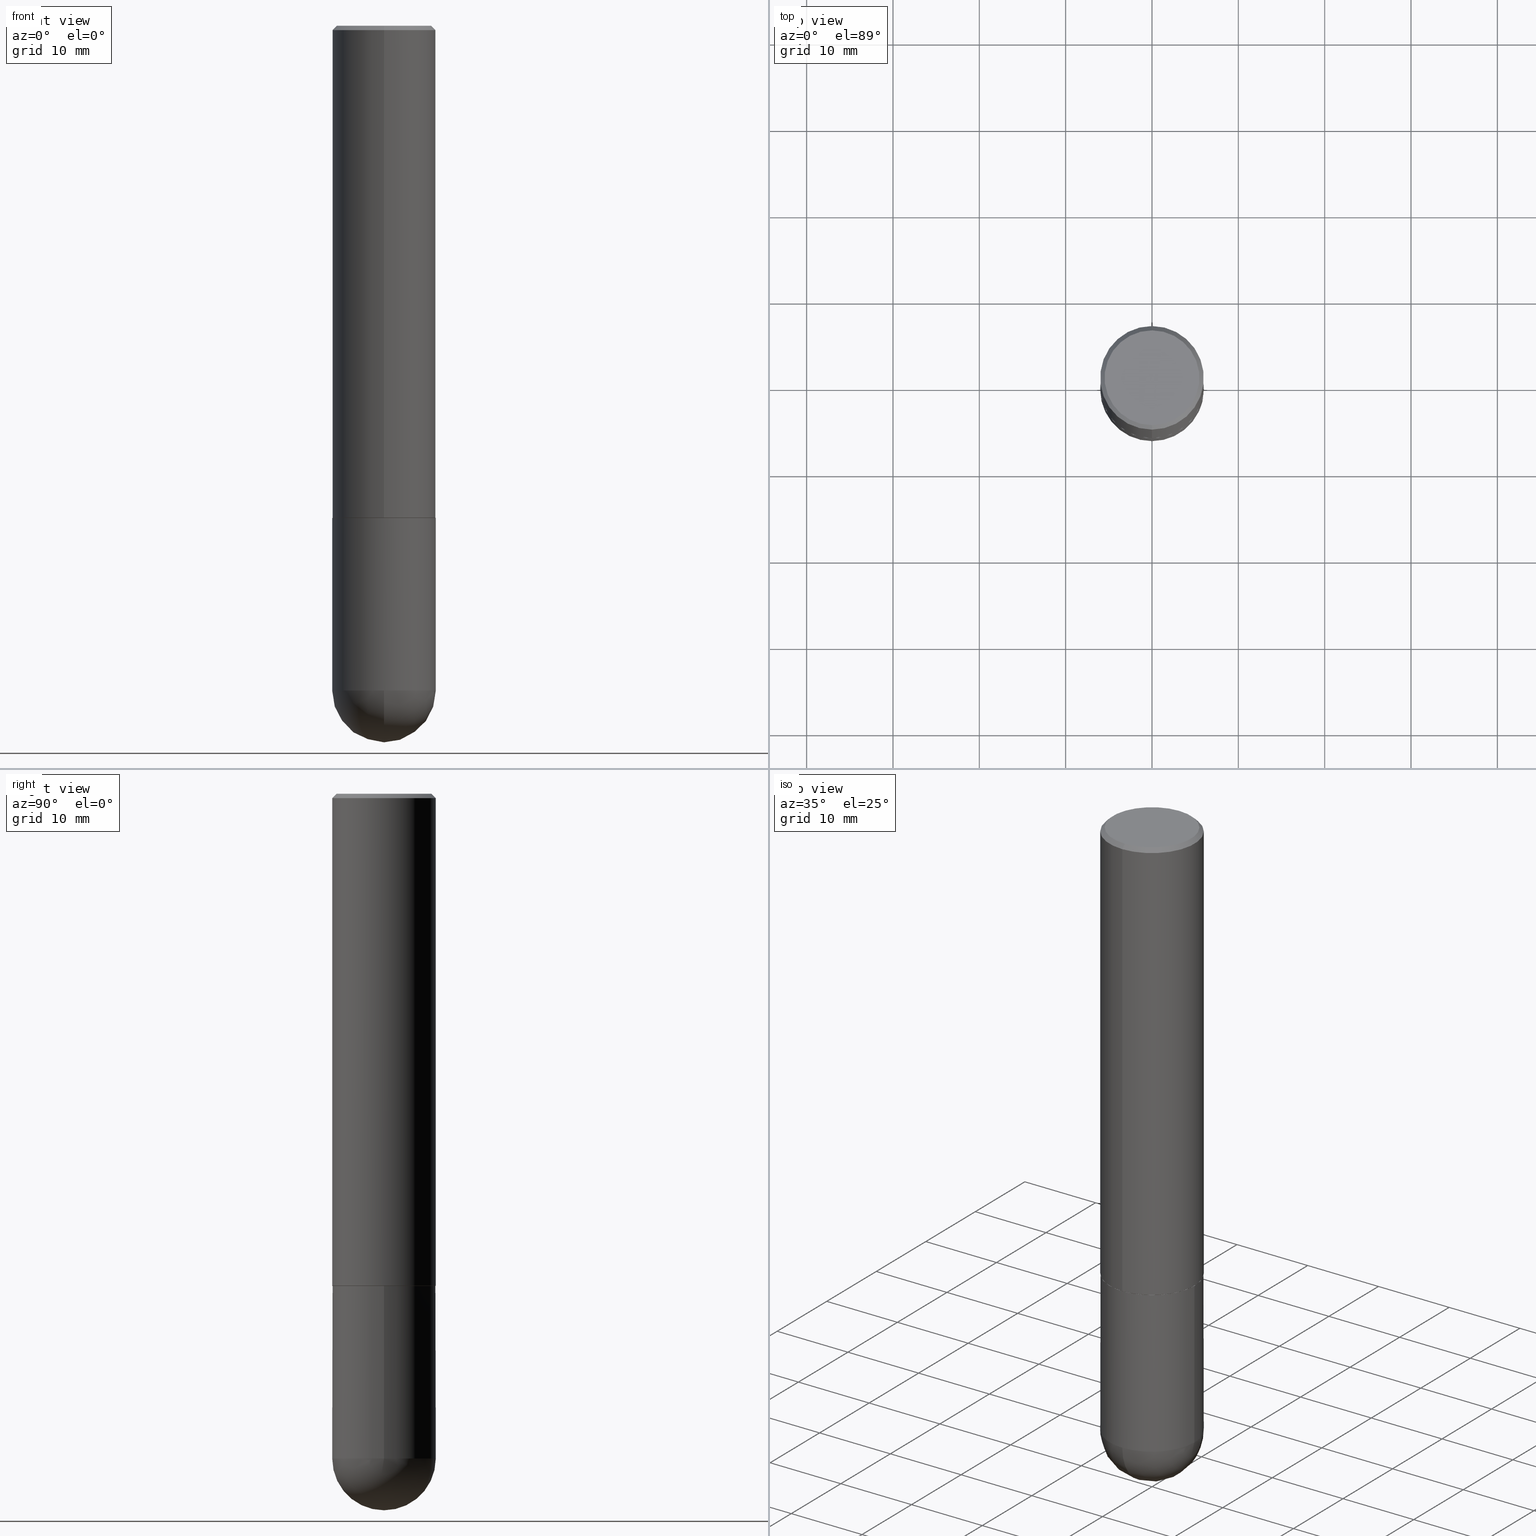
[diagram: canonical four-view strip — front | top / right | iso, engineering-drawing reading convention]
A machine part, canonical four-view strip (front | top / right | iso — engineering-drawing reading convention). The complete STEP part file that produces these views, byte-faithful:
ISO-10303-21;
HEADER;
FILE_DESCRIPTION (( 'STEP AP203' ),
    '1' );
FILE_NAME ('46346.STEP',
    '2024-04-10T11:49:39',
    ( '' ),
    ( '' ),
    'SwSTEP 2.0',
    'SolidWorks 2023',
    '' );
FILE_SCHEMA (( 'CONFIG_CONTROL_DESIGN' ));
ENDSEC;

DATA;
#1 = DIRECTION ( 'NONE',  ( -2.444322153688896365E-29, 3.493123410481168498E-15, 1.000000000000000000 ) ) ;
#2 = CC_DESIGN_DATE_AND_TIME_ASSIGNMENT ( #303, #170, ( #5 ) ) ;
#3 = COORDINATED_UNIVERSAL_TIME_OFFSET ( 5, 0, .BEHIND. ) ;
#4 = AXIS2_PLACEMENT_3D ( 'NONE', #76, #237, #143 ) ;
#5 = SECURITY_CLASSIFICATION ( '', '', #198 ) ;
#6 = DIRECTION ( 'NONE',  ( -6.982962677686265922E-15, -1.000000000000000000, 3.487819265831412533E-15 ) ) ;
#7 = PERSON_AND_ORGANIZATION ( #240, #160 ) ;
#8 = CARTESIAN_POINT ( 'NONE',  ( -0.2361999999999999933, -7.531527533735092287E-15, -2.244100000000000428 ) ) ;
#9 = CALENDAR_DATE ( 2024, 10, 4 ) ;
#10 = PLANE ( 'NONE',  #275 ) ;
#11 = CALENDAR_DATE ( 2024, 10, 4 ) ;
#12 = DIRECTION ( 'NONE',  ( -2.444322153688896365E-29, 3.493123410481168498E-15, 1.000000000000000000 ) ) ;
#13 = CIRCLE ( 'NONE', #193, 0.2362000000000002709 ) ;
#14 = EDGE_CURVE ( 'NONE', #279, #103, #372, .T. ) ;
#15 = SHAPE_DEFINITION_REPRESENTATION ( #346, #201 ) ;
#16 = DIRECTION ( 'NONE',  ( -2.445468806185136597E-29, 3.491481338843145583E-15, 1.000000000000000000 ) ) ;
#17 = CARTESIAN_POINT ( 'NONE',  ( 7.082318908036356584E-29, -1.105860804684304690E-14, -3.031500000000000306 ) ) ;
#18 = DIRECTION ( 'NONE',  ( 1.000000000000000000, -6.982962677686265133E-15, 0.000000000000000000 ) ) ;
#19 = VECTOR ( 'NONE', #194, 39.37007874015748143 ) ;
#20 = VERTEX_POINT ( 'NONE', #51 ) ;
#21 = EDGE_LOOP ( 'NONE', ( #212, #399, #115, #100 ) ) ;
#22 = VERTEX_POINT ( 'NONE', #30 ) ;
#23 = CIRCLE ( 'NONE', #330, 0.2351999999999999924 ) ;
#24 = EDGE_CURVE ( 'NONE', #20, #54, #254, .T. ) ;
#25 = ORIENTED_EDGE ( 'NONE', *, *, #80, .T. ) ;
#26 = ADVANCED_FACE ( 'NONE', ( #157 ), #93, .T. ) ;
#27 = CC_DESIGN_APPROVAL ( #343, ( #268 ) ) ;
#28 = DIRECTION ( 'NONE',  ( -2.445468806185136597E-29, 3.491481338843145583E-15, 1.000000000000000000 ) ) ;
#29 = EDGE_LOOP ( 'NONE', ( #376, #342 ) ) ;
#30 = CARTESIAN_POINT ( 'NONE',  ( -1.649375784469443080E-15, -0.2362000000000080979, -2.243099999999999206 ) ) ;
#31 = CARTESIAN_POINT ( 'NONE',  ( 0.2361999999999999933, -1.085920526006994836E-14, -3.031499999999999417 ) ) ;
#32 = AXIS2_PLACEMENT_3D ( 'NONE', #162, #12, #203 ) ;
#33 = CARTESIAN_POINT ( 'NONE',  ( 7.082318908036356584E-29, -1.105860804684304690E-14, -3.031500000000000306 ) ) ;
#34 = CC_DESIGN_PERSON_AND_ORGANIZATION_ASSIGNMENT ( #38, #77, ( #268 ) ) ;
#35 = CARTESIAN_POINT ( 'NONE',  ( -4.077789392714510406E-45, 5.827473096868962417E-31, 1.668270030020566327E-16 ) ) ;
#36 = FACE_OUTER_BOUND ( 'NONE', #289, .T. ) ;
#37 = ADVANCED_FACE ( 'NONE', ( #410 ), #267, .T. ) ;
#38 = PERSON_AND_ORGANIZATION ( #240, #160 ) ;
#39 = VECTOR ( 'NONE', #228, 39.37007874015748143 ) ;
#40 =( GEOMETRIC_REPRESENTATION_CONTEXT ( 3 ) GLOBAL_UNCERTAINTY_ASSIGNED_CONTEXT ( ( #187 ) ) GLOBAL_UNIT_ASSIGNED_CONTEXT ( ( #305, #144, #299 ) ) REPRESENTATION_CONTEXT ( 'NONE', 'WORKASPACE' ) );
#41 = CARTESIAN_POINT ( 'NONE',  ( 5.482859022939564646E-29, -7.835425122050310720E-15, -2.243100000000000094 ) ) ;
#42 = PERSON_AND_ORGANIZATION_ROLE ( 'creator' ) ;
#43 = CARTESIAN_POINT ( 'NONE',  ( -0.2361999999999999933, 1.678301941865356591E-15, -1.161852468318208757E-29 ) ) ;
#44 = PERSON_AND_ORGANIZATION_ROLE ( 'design_supplier' ) ;
#45 = FACE_OUTER_BOUND ( 'NONE', #29, .T. ) ;
#46 = AXIS2_PLACEMENT_3D ( 'NONE', #89, #337, #364 ) ;
#47 = DIRECTION ( 'NONE',  ( -2.444322153688896365E-29, 3.493123410481168498E-15, 1.000000000000000000 ) ) ;
#48 = APPROVAL_PERSON_ORGANIZATION ( #324, #374, #269 ) ;
#49 = PERSON_AND_ORGANIZATION ( #240, #160 ) ;
#50 = ORIENTED_EDGE ( 'NONE', *, *, #386, .F. ) ;
#51 = CARTESIAN_POINT ( 'NONE',  ( -1.678301941865284805E-15, -0.2362000000000109567, -3.031499999999998529 ) ) ;
#52 = FACE_OUTER_BOUND ( 'NONE', #338, .T. ) ;
#53 = AXIS2_PLACEMENT_3D ( 'NONE', #118, #335, #365 ) ;
#54 = VERTEX_POINT ( 'NONE', #31 ) ;
#55 = DIRECTION ( 'NONE',  ( -6.982962677686265133E-15, -1.000000000000000000, 3.484499991918703113E-15 ) ) ;
#56 = ORIENTED_EDGE ( 'NONE', *, *, #69, .F. ) ;
#57 = APPLICATION_CONTEXT ( 'configuration controlled 3d designs of mechanical parts and assemblies' ) ;
#58 = ORIENTED_EDGE ( 'NONE', *, *, #98, .F. ) ;
#59 = VECTOR ( 'NONE', #241, 39.37007874015748143 ) ;
#60 = LOCAL_TIME ( 7, 49, 39.00000000000000000, #206 ) ;
#61 = ORIENTED_EDGE ( 'NONE', *, *, #68, .T. ) ;
#62 = CARTESIAN_POINT ( 'NONE',  ( 4.888644307377804992E-31, -6.986246820962353956E-17, -0.02000000000000005246 ) ) ;
#63 = VERTEX_POINT ( 'NONE', #128 ) ;
#64 = EDGE_CURVE ( 'NONE', #54, #274, #391, .T. ) ;
#65 = CARTESIAN_POINT ( 'NONE',  ( 1.671196514507810212E-15, 0.2351999999999921376, -2.244100000000000872 ) ) ;
#66 = ORIENTED_EDGE ( 'NONE', *, *, #176, .F. ) ;
#67 = SPHERICAL_SURFACE ( 'NONE', #4, 0.2362000000000002709 ) ;
#68 = EDGE_CURVE ( 'NONE', #103, #279, #224, .T. ) ;
#69 = EDGE_CURVE ( 'NONE', #146, #20, #164, .T. ) ;
#70 = DIRECTION ( 'NONE',  ( 0.000000000000000000, 0.000000000000000000, 1.000000000000000000 ) ) ;
#71 = EDGE_CURVE ( 'NONE', #313, #215, #258, .T. ) ;
#72 = CC_DESIGN_PERSON_AND_ORGANIZATION_ASSIGNMENT ( #136, #166, ( #387 ) ) ;
#73 = FACE_OUTER_BOUND ( 'NONE', #117, .T. ) ;
#74 = MECHANICAL_CONTEXT ( 'NONE', #57, 'mechanical' ) ;
#75 = CONICAL_SURFACE ( 'NONE', #121, 0.2351999999999999924, 0.7853981633976873100 ) ;
#76 = CARTESIAN_POINT ( 'NONE',  ( 7.082318908036356584E-29, -1.105860804684304690E-14, -3.031500000000000306 ) ) ;
#77 = PERSON_AND_ORGANIZATION_ROLE ( 'creator' ) ;
#78 = CYLINDRICAL_SURFACE ( 'NONE', #32, 0.2362000000000001043 ) ;
#79 = CALENDAR_DATE ( 2024, 10, 4 ) ;
#80 = EDGE_CURVE ( 'NONE', #184, #215, #102, .T. ) ;
#81 = CARTESIAN_POINT ( 'NONE',  ( 1.649375784469550759E-15, 0.2361999999999921662, -2.244100000000000872 ) ) ;
#82 = CC_DESIGN_PERSON_AND_ORGANIZATION_ASSIGNMENT ( #49, #42, ( #344 ) ) ;
#83 = DIRECTION ( 'NONE',  ( 1.000000000000000000, 0.000000000000000000, 0.000000000000000000 ) ) ;
#84 = AXIS2_PLACEMENT_3D ( 'NONE', #255, #375, #319 ) ;
#85 = DIRECTION ( 'NONE',  ( -6.982962677686265922E-15, -1.000000000000000000, 3.469747663417773058E-15 ) ) ;
#86 = ORIENTED_EDGE ( 'NONE', *, *, #378, .T. ) ;
#87 = CARTESIAN_POINT ( 'NONE',  ( 5.482859022939564646E-29, -7.835425122050310720E-15, -2.243100000000000094 ) ) ;
#88 = ORIENTED_EDGE ( 'NONE', *, *, #14, .T. ) ;
#89 = CARTESIAN_POINT ( 'NONE',  ( 7.413438685950241710E-29, -1.058442567870299344E-14, -3.031499999999999417 ) ) ;
#90 = EDGE_LOOP ( 'NONE', ( #311, #220 ) ) ;
#91 = EDGE_CURVE ( 'NONE', #125, #184, #347, .T. ) ;
#92 = DIRECTION ( 'NONE',  ( -2.444322153688896365E-29, 3.493123410481168498E-15, 1.000000000000000000 ) ) ;
#93 = CONICAL_SURFACE ( 'NONE', #84, 0.2351999999999999924, 0.7853981633976873100 ) ;
#94 = AXIS2_PLACEMENT_3D ( 'NONE', #288, #1, #6 ) ;
#95 = ORIENTED_EDGE ( 'NONE', *, *, #14, .F. ) ;
#96 = ORIENTED_EDGE ( 'NONE', *, *, #323, .T. ) ;
#97 = CARTESIAN_POINT ( 'NONE',  ( 1.649375784469495934E-15, 0.2361999999999998545, -0.02000000000000087472 ) ) ;
#98 = EDGE_CURVE ( 'NONE', #313, #407, #322, .T. ) ;
#99 = AXIS2_PLACEMENT_3D ( 'NONE', #81, #270, #390 ) ;
#100 = ORIENTED_EDGE ( 'NONE', *, *, #378, .F. ) ;
#101 = CARTESIAN_POINT ( 'NONE',  ( 7.413438685950241710E-29, -1.058442567870299344E-14, -3.031499999999999417 ) ) ;
#102 = LINE ( 'NONE', #405, #360 ) ;
#103 = VERTEX_POINT ( 'NONE', #8 ) ;
#104 = CIRCLE ( 'NONE', #317, 0.2361999999999999378 ) ;
#105 = CC_DESIGN_APPROVAL ( #374, ( #344 ) ) ;
#106 = LINE ( 'NONE', #356, #39 ) ;
#107 = CYLINDRICAL_SURFACE ( 'NONE', #302, 0.2361999999999999933 ) ;
#108 = DIRECTION ( 'NONE',  ( -2.444322153688896365E-29, 3.493123410481168498E-15, 1.000000000000000000 ) ) ;
#109 = APPROVAL_DATE_TIME ( #393, #374 ) ;
#110 = AXIS2_PLACEMENT_3D ( 'NONE', #137, #264, #205 ) ;
#111 = CARTESIAN_POINT ( 'NONE',  ( 0.000000000000000000, 0.000000000000000000, 0.000000000000000000 ) ) ;
#112 = PERSON_AND_ORGANIZATION_ROLE ( 'classification_officer' ) ;
#113 = DIRECTION ( 'NONE',  ( 6.982962677686265922E-15, 1.000000000000000000, -3.493123410481168498E-15 ) ) ;
#114 = DIRECTION ( 'NONE',  ( -2.444322153688896365E-29, 3.493123410481168498E-15, 1.000000000000000000 ) ) ;
#115 = ORIENTED_EDGE ( 'NONE', *, *, #408, .T. ) ;
#116 = LINE ( 'NONE', #359, #59 ) ;
#117 = EDGE_LOOP ( 'NONE', ( #401, #312, #188, #309 ) ) ;
#118 = CARTESIAN_POINT ( 'NONE',  ( 4.888644307377804992E-31, -6.986246820962353956E-17, -0.02000000000000005246 ) ) ;
#119 = DIRECTION ( 'NONE',  ( -6.982962677686265922E-15, -1.000000000000000000, 3.487819265831412533E-15 ) ) ;
#120 = EDGE_LOOP ( 'NONE', ( #50, #403, #186, #333 ) ) ;
#121 = AXIS2_PLACEMENT_3D ( 'NONE', #219, #147, #397 ) ;
#122 = ORIENTED_EDGE ( 'NONE', *, *, #293, .T. ) ;
#123 = DIRECTION ( 'NONE',  ( -2.444322153688896365E-29, 3.493123410481168498E-15, 1.000000000000000000 ) ) ;
#124 = EDGE_CURVE ( 'NONE', #125, #63, #189, .T. ) ;
#125 = VERTEX_POINT ( 'NONE', #235 ) ;
#126 = EDGE_CURVE ( 'NONE', #146, #274, #182, .T. ) ;
#127 = AXIS2_PLACEMENT_3D ( 'NONE', #216, #272, #149 ) ;
#128 = CARTESIAN_POINT ( 'NONE',  ( -1.642392821791754699E-15, -0.2352000000000078472, -2.244099999999999095 ) ) ;
#129 = ORIENTED_EDGE ( 'NONE', *, *, #323, .F. ) ;
#130 = DIRECTION ( 'NONE',  ( -1.000000000000000000, 7.105427357601001070E-15, -4.926315508542082329E-29 ) ) ;
#131 = DIRECTION ( 'NONE',  ( -6.982962677686265922E-15, -1.000000000000000000, 3.493123410481168103E-15 ) ) ;
#132 = CC_DESIGN_PERSON_AND_ORGANIZATION_ASSIGNMENT ( #328, #112, ( #5 ) ) ;
#133 = VECTOR ( 'NONE', #379, 39.37007874015748143 ) ;
#134 = APPROVAL_DATE_TIME ( #357, #148 ) ;
#135 = DIRECTION ( 'NONE',  ( -2.444322153688896365E-29, 3.493123410481168498E-15, 1.000000000000000000 ) ) ;
#136 = PERSON_AND_ORGANIZATION ( #240, #160 ) ;
#137 = CARTESIAN_POINT ( 'NONE',  ( 7.082318908036356584E-29, -1.105860804684304690E-14, -3.031500000000000306 ) ) ;
#138 = APPROVAL_STATUS ( 'not_yet_approved' ) ;
#139 = CYLINDRICAL_SURFACE ( 'NONE', #159, 0.2362000000000001043 ) ;
#140 = ADVANCED_FACE ( 'NONE', ( #260 ), #266, .F. ) ;
#141 = APPROVAL_STATUS ( 'not_yet_approved' ) ;
#142 = CIRCLE ( 'NONE', #127, 0.2161999999999997535 ) ;
#143 = DIRECTION ( 'NONE',  ( 6.982962677686265922E-15, 1.000000000000000000, -4.626330217890364603E-15 ) ) ;
#144 =( NAMED_UNIT ( * ) PLANE_ANGLE_UNIT ( ) SI_UNIT ( $, .RADIAN. ) );
#145 = DIRECTION ( 'NONE',  ( -2.445468806185136597E-29, 3.491481338843145583E-15, 1.000000000000000000 ) ) ;
#146 = VERTEX_POINT ( 'NONE', #327 ) ;
#147 = DIRECTION ( 'NONE',  ( -2.444322153688896365E-29, 3.493123410481168498E-15, 1.000000000000000000 ) ) ;
#148 = APPROVAL ( #349, 'UNSPECIFIED' ) ;
#149 = DIRECTION ( 'NONE',  ( -6.982962677686266711E-15, -1.000000000000000000, 3.493123410481168892E-15 ) ) ;
#150 = EDGE_LOOP ( 'NONE', ( #66, #58, #315, #282 ) ) ;
#151 = CARTESIAN_POINT ( 'NONE',  ( -0.2361999999999999933, -7.531527533735093865E-15, -3.031499999999999417 ) ) ;
#152 = ORIENTED_EDGE ( 'NONE', *, *, #408, .F. ) ;
#153 = ORIENTED_EDGE ( 'NONE', *, *, #196, .F. ) ;
#154 = AXIS2_PLACEMENT_3D ( 'NONE', #17, #362, #175 ) ;
#155 = EDGE_LOOP ( 'NONE', ( #239, #25, #259, #153 ) ) ;
#156 = ORIENTED_EDGE ( 'NONE', *, *, #307, .F. ) ;
#157 = FACE_OUTER_BOUND ( 'NONE', #21, .T. ) ;
#158 = CC_DESIGN_DATE_AND_TIME_ASSIGNMENT ( #355, #177, ( #344 ) ) ;
#159 = AXIS2_PLACEMENT_3D ( 'NONE', #111, #207, #131 ) ;
#160 = ORGANIZATION ( 'UNSPECIFIED', 'UNSPECIFIED', '' ) ;
#161 = ORIENTED_EDGE ( 'NONE', *, *, #223, .F. ) ;
#162 = CARTESIAN_POINT ( 'NONE',  ( 0.000000000000000000, 0.000000000000000000, 0.000000000000000000 ) ) ;
#163 = PLANE ( 'NONE',  #99 ) ;
#164 = CIRCLE ( 'NONE', #398, 0.2362000000000002709 ) ;
#165 = APPROVAL_PERSON_ORGANIZATION ( #326, #343, #229 ) ;
#166 = PERSON_AND_ORGANIZATION_ROLE ( 'design_owner' ) ;
#167 = CARTESIAN_POINT ( 'NONE',  ( 1.649375784469495934E-15, 0.2361999999999998545, -0.02000000000000087472 ) ) ;
#168 = ADVANCED_FACE ( 'NONE', ( #298 ), #107, .T. ) ;
#169 = DIRECTION ( 'NONE',  ( -2.445468806185136877E-29, 3.491481338843145188E-15, 1.000000000000000000 ) ) ;
#170 = DATE_TIME_ROLE ( 'classification_date' ) ;
#171 = FACE_OUTER_BOUND ( 'NONE', #250, .T. ) ;
#172 = AXIS2_PLACEMENT_3D ( 'NONE', #101, #28, #345 ) ;
#173 = AXIS2_PLACEMENT_3D ( 'NONE', #197, #135, #300 ) ;
#174 = COORDINATED_UNIVERSAL_TIME_OFFSET ( 5, 0, .BEHIND. ) ;
#175 = DIRECTION ( 'NONE',  ( 6.982962677686265922E-15, 1.000000000000000000, -4.626330217890364603E-15 ) ) ;
#176 = EDGE_CURVE ( 'NONE', #407, #256, #106, .T. ) ;
#177 = DATE_TIME_ROLE ( 'creation_date' ) ;
#178 = LENGTH_MEASURE_WITH_UNIT ( LENGTH_MEASURE( 0.02539999999999999897 ), #211 );
#179 = PRODUCT_RELATED_PRODUCT_CATEGORY ( 'detail', '', ( #387 ) ) ;
#180 = CARTESIAN_POINT ( 'NONE',  ( 1.579546157692632438E-15, 0.2161999999999997535, -5.883862783439711833E-16 ) ) ;
#181 = AXIS2_PLACEMENT_3D ( 'NONE', #204, #221, #406 ) ;
#182 = CIRCLE ( 'NONE', #110, 0.2362000000000002709 ) ;
#183 = CARTESIAN_POINT ( 'NONE',  ( 4.888644307377804992E-31, -6.986246820962353956E-17, -0.02000000000000005246 ) ) ;
#184 = VERTEX_POINT ( 'NONE', #199 ) ;
#185 = FACE_OUTER_BOUND ( 'NONE', #366, .T. ) ;
#186 = ORIENTED_EDGE ( 'NONE', *, *, #277, .T. ) ;
#187 = UNCERTAINTY_MEASURE_WITH_UNIT (LENGTH_MEASURE( 1.000000000000000082E-05 ), #305, 'distance_accuracy_value', 'NONE');
#188 = ORIENTED_EDGE ( 'NONE', *, *, #301, .F. ) ;
#189 = CIRCLE ( 'NONE', #173, 0.2351999999999999924 ) ;
#190 = ORIENTED_EDGE ( 'NONE', *, *, #126, .T. ) ;
#191 = CC_DESIGN_PERSON_AND_ORGANIZATION_ASSIGNMENT ( #7, #44, ( #268 ) ) ;
#192 = ORIENTED_EDGE ( 'NONE', *, *, #68, .F. ) ;
#193 = AXIS2_PLACEMENT_3D ( 'NONE', #41, #108, #296 ) ;
#194 = DIRECTION ( 'NONE',  ( 5.024295867789263036E-15, 0.7071067811867189912, 0.7071067811863760433 ) ) ;
#195 = ORIENTED_EDGE ( 'NONE', *, *, #24, .T. ) ;
#196 = EDGE_CURVE ( 'NONE', #22, #256, #230, .T. ) ;
#197 = CARTESIAN_POINT ( 'NONE',  ( 5.485303345093252884E-29, -7.838918245460790521E-15, -2.244099999999999984 ) ) ;
#198 = SECURITY_CLASSIFICATION_LEVEL ( 'unclassified' ) ;
#199 = CARTESIAN_POINT ( 'NONE',  ( 1.678301941865385582E-15, 0.2361999999999924438, -2.243100000000000982 ) ) ;
#200 = VECTOR ( 'NONE', #350, 39.37007874015748143 ) ;
#201 = ADVANCED_BREP_SHAPE_REPRESENTATION ( '46346', ( #334, #210, #392 ), #40 ) ;
#202 = ADVANCED_FACE ( 'NONE', ( #381 ), #78, .T. ) ;
#203 = DIRECTION ( 'NONE',  ( -6.982962677686265922E-15, -1.000000000000000000, 3.493123410481168103E-15 ) ) ;
#204 = CARTESIAN_POINT ( 'NONE',  ( 5.487876547960065873E-29, -7.835233272497903917E-15, -2.244100000000000428 ) ) ;
#205 = DIRECTION ( 'NONE',  ( 6.982962677686265922E-15, 1.000000000000000000, 0.000000000000000000 ) ) ;
#206 = COORDINATED_UNIVERSAL_TIME_OFFSET ( 5, 0, .BEHIND. ) ;
#207 = DIRECTION ( 'NONE',  ( -2.444322153688896365E-29, 3.493123410481168498E-15, 1.000000000000000000 ) ) ;
#208 = CIRCLE ( 'NONE', #291, 0.2362000000000002709 ) ;
#209 = APPLICATION_PROTOCOL_DEFINITION ( 'international standard', 'config_control_design', 1994, #222 ) ;
#210 = MANIFOLD_SOLID_BREP ( 'Body-Move/Copy2[2]', #389 ) ;
#211 =( LENGTH_UNIT ( ) NAMED_UNIT ( * ) SI_UNIT ( $, .METRE. ) );
#212 = ORIENTED_EDGE ( 'NONE', *, *, #91, .F. ) ;
#213 = ADVANCED_FACE ( 'NONE', ( #73 ), #67, .T. ) ;
#214 = FACE_OUTER_BOUND ( 'NONE', #120, .T. ) ;
#215 = VERTEX_POINT ( 'NONE', #167 ) ;
#216 = CARTESIAN_POINT ( 'NONE',  ( -4.077789392714510406E-45, 5.827473096868962417E-31, 1.668270030020566327E-16 ) ) ;
#217 = ORIENTED_EDGE ( 'NONE', *, *, #244, .T. ) ;
#218 = AXIS2_PLACEMENT_3D ( 'NONE', #35, #123, #370 ) ;
#219 = CARTESIAN_POINT ( 'NONE',  ( 5.485303345093252884E-29, -7.838918245460790521E-15, -2.244099999999999984 ) ) ;
#220 = ORIENTED_EDGE ( 'NONE', *, *, #386, .T. ) ;
#221 = DIRECTION ( 'NONE',  ( -2.445468806185136597E-29, 3.491481338843145583E-15, 1.000000000000000000 ) ) ;
#222 = APPLICATION_CONTEXT ( 'configuration controlled 3d designs of mechanical parts and assemblies' ) ;
#223 = EDGE_CURVE ( 'NONE', #22, #184, #13, .T. ) ;
#224 = CIRCLE ( 'NONE', #248, 0.2361999999999999933 ) ;
#225 = CARTESIAN_POINT ( 'NONE',  ( 5.487876547960065873E-29, -7.835233272497903917E-15, -2.244100000000000428 ) ) ;
#226 = DIRECTION ( 'NONE',  ( -2.444322153688896645E-29, 3.493123410481168498E-15, 1.000000000000000000 ) ) ;
#227 = CIRCLE ( 'NONE', #94, 0.2361999999999999378 ) ;
#228 = DIRECTION ( 'NONE',  ( -4.851104656540957175E-15, -0.7071067811865490160, -0.7071067811865460184 ) ) ;
#229 = APPROVAL_ROLE ( '' ) ;
#230 = LINE ( 'NONE', #348, #200 ) ;
#231 = ADVANCED_FACE ( 'NONE', ( #45 ), #10, .F. ) ;
#232 = LINE ( 'NONE', #43, #373 ) ;
#233 = CONICAL_SURFACE ( 'NONE', #53, 0.2361999999999999378, 0.7853981633974469467 ) ;
#234 = LOCAL_TIME ( 7, 49, 39.00000000000000000, #3 ) ;
#235 = CARTESIAN_POINT ( 'NONE',  ( 1.674749228186611702E-15, 0.2351999999999921376, -2.244100000000000872 ) ) ;
#236 = APPROVAL_ROLE ( '' ) ;
#237 = DIRECTION ( 'NONE',  ( -1.000000000000000000, 6.982962677686265922E-15, -4.883557194083112901E-29 ) ) ;
#238 = CARTESIAN_POINT ( 'NONE',  ( -1.642392821791754699E-15, -0.2352000000000078472, -2.244099999999999095 ) ) ;
#239 = ORIENTED_EDGE ( 'NONE', *, *, #223, .T. ) ;
#240 = PERSON ( 'UNSPECIFIED', 'UNSPECIFIED', 'UNSPECIFIED', ('UNSPECIFIED'), ('UNSPECIFIED'), ('UNSPECIFIED') ) ;
#241 = DIRECTION ( 'NONE',  ( -2.445468806185136877E-29, 3.491481338843145188E-15, 1.000000000000000000 ) ) ;
#242 = ADVANCED_FACE ( 'NONE', ( #36 ), #163, .F. ) ;
#243 = CYLINDRICAL_SURFACE ( 'NONE', #380, 0.2361999999999999933 ) ;
#244 = EDGE_CURVE ( 'NONE', #363, #103, #232, .T. ) ;
#245 = CARTESIAN_POINT ( 'NONE',  ( 5.485303345093252884E-29, -7.838918245460790521E-15, -2.244099999999999984 ) ) ;
#246 = ORIENTED_EDGE ( 'NONE', *, *, #196, .T. ) ;
#247 = AXIS2_PLACEMENT_3D ( 'NONE', #62, #412, #316 ) ;
#248 = AXIS2_PLACEMENT_3D ( 'NONE', #225, #252, #287 ) ;
#249 = LOCAL_TIME ( 7, 49, 39.00000000000000000, #174 ) ;
#250 = EDGE_LOOP ( 'NONE', ( #371, #86, #246, #156 ) ) ;
#251 = ADVANCED_FACE ( 'NONE', ( #171 ), #139, .T. ) ;
#252 = DIRECTION ( 'NONE',  ( -2.445468806185136597E-29, 3.491481338843145583E-15, 1.000000000000000000 ) ) ;
#253 = ORIENTED_EDGE ( 'NONE', *, *, #64, .F. ) ;
#254 = CIRCLE ( 'NONE', #172, 0.2361999999999999933 ) ;
#255 = CARTESIAN_POINT ( 'NONE',  ( 5.485303345093252884E-29, -7.838918245460790521E-15, -2.244099999999999984 ) ) ;
#256 = VERTEX_POINT ( 'NONE', #290 ) ;
#257 = CARTESIAN_POINT ( 'NONE',  ( 7.413438685950241710E-29, -1.058442567870299344E-14, -3.031499999999999417 ) ) ;
#258 = LINE ( 'NONE', #97, #133 ) ;
#259 = ORIENTED_EDGE ( 'NONE', *, *, #277, .F. ) ;
#260 = FACE_OUTER_BOUND ( 'NONE', #90, .T. ) ;
#261 = CARTESIAN_POINT ( 'NONE',  ( 0.000000000000000000, 0.000000000000000000, 0.000000000000000000 ) ) ;
#262 = CARTESIAN_POINT ( 'NONE',  ( 1.509716530915769140E-15, 0.2161999999999997535, -6.717997798449995119E-16 ) ) ;
#263 = CALENDAR_DATE ( 2024, 10, 4 ) ;
#264 = DIRECTION ( 'NONE',  ( 1.000000000000000000, -6.982962677686265922E-15, 4.883557194083112340E-29 ) ) ;
#265 = APPLICATION_PROTOCOL_DEFINITION ( 'international standard', 'config_control_design', 1994, #57 ) ;
#266 = PLANE ( 'NONE',  #339 ) ;
#267 = CONICAL_SURFACE ( 'NONE', #247, 0.2361999999999999378, 0.7853981633974469467 ) ;
#268 = PRODUCT_DEFINITION_FORMATION_WITH_SPECIFIED_SOURCE ( 'ANY', '', #387, .NOT_KNOWN. ) ;
#269 = APPROVAL_ROLE ( '' ) ;
#270 = DIRECTION ( 'NONE',  ( 2.438088387897960049E-29, -3.491481338843145188E-15, -1.000000000000000000 ) ) ;
#271 = CALENDAR_DATE ( 2024, 10, 4 ) ;
#272 = DIRECTION ( 'NONE',  ( -2.444322153688896365E-29, 3.493123410481168498E-15, 1.000000000000000000 ) ) ;
#273 = CARTESIAN_POINT ( 'NONE',  ( 0.000000000000000000, 0.000000000000000000, 0.000000000000000000 ) ) ;
#274 = VERTEX_POINT ( 'NONE', #329 ) ;
#275 = AXIS2_PLACEMENT_3D ( 'NONE', #320, #325, #358 ) ;
#276 = CC_DESIGN_SECURITY_CLASSIFICATION ( #5, ( #268 ) ) ;
#277 = EDGE_CURVE ( 'NONE', #256, #215, #227, .T. ) ;
#278 = FACE_OUTER_BOUND ( 'NONE', #286, .T. ) ;
#279 = VERTEX_POINT ( 'NONE', #340 ) ;
#280 = SPHERICAL_SURFACE ( 'NONE', #154, 0.2362000000000002709 ) ;
#281 = ORIENTED_EDGE ( 'NONE', *, *, #24, .F. ) ;
#282 = ORIENTED_EDGE ( 'NONE', *, *, #307, .T. ) ;
#283 = CIRCLE ( 'NONE', #314, 0.2361999999999999933 ) ;
#284 = LOCAL_TIME ( 7, 49, 39.00000000000000000, #331 ) ;
#285 = DIRECTION ( 'NONE',  ( -7.105427357601001070E-15, -1.000000000000000000, 0.000000000000000000 ) ) ;
#286 = EDGE_LOOP ( 'NONE', ( #122, #217, #95, #129, #341 ) ) ;
#287 = DIRECTION ( 'NONE',  ( 1.000000000000000000, -6.982962677686269077E-15, 0.000000000000000000 ) ) ;
#288 = CARTESIAN_POINT ( 'NONE',  ( 4.888644307377804992E-31, -6.986246820962353956E-17, -0.02000000000000005246 ) ) ;
#289 = EDGE_LOOP ( 'NONE', ( #88, #61 ) ) ;
#290 = CARTESIAN_POINT ( 'NONE',  ( -1.620449627073634487E-15, -0.2361999999999999933, -0.01999999999999922673 ) ) ;
#291 = AXIS2_PLACEMENT_3D ( 'NONE', #87, #114, #85 ) ;
#292 = CC_DESIGN_APPROVAL ( #148, ( #5 ) ) ;
#293 = EDGE_CURVE ( 'NONE', #274, #363, #409, .T. ) ;
#294 = APPROVAL_DATE_TIME ( #388, #343 ) ;
#295 = ADVANCED_FACE ( 'NONE', ( #52 ), #75, .T. ) ;
#296 = DIRECTION ( 'NONE',  ( -6.982962677686265922E-15, -1.000000000000000000, 3.469747663417773058E-15 ) ) ;
#297 = COORDINATED_UNIVERSAL_TIME_OFFSET ( 5, 0, .BEHIND. ) ;
#298 = FACE_OUTER_BOUND ( 'NONE', #411, .T. ) ;
#299 =( NAMED_UNIT ( * ) SI_UNIT ( $, .STERADIAN. ) SOLID_ANGLE_UNIT ( ) );
#300 = DIRECTION ( 'NONE',  ( -6.982962677686265133E-15, -1.000000000000000000, 3.484499991918703113E-15 ) ) ;
#301 = EDGE_CURVE ( 'NONE', #363, #20, #283, .T. ) ;
#302 = AXIS2_PLACEMENT_3D ( 'NONE', #385, #351, #394 ) ;
#303 = DATE_AND_TIME ( #271, #249 ) ;
#304 = DIRECTION ( 'NONE',  ( 1.000000000000000000, -6.982962677686266711E-15, 4.876176775795936353E-29 ) ) ;
#305 =( CONVERSION_BASED_UNIT ( 'INCH', #178 ) LENGTH_UNIT ( ) NAMED_UNIT ( #382 ) );
#306 = ORIENTED_EDGE ( 'NONE', *, *, #91, .T. ) ;
#307 = EDGE_CURVE ( 'NONE', #215, #256, #104, .T. ) ;
#308 = CLOSED_SHELL ( 'NONE', ( #368, #213, #354, #242, #168 ) ) ;
#309 = ORIENTED_EDGE ( 'NONE', *, *, #293, .F. ) ;
#310 = CARTESIAN_POINT ( 'NONE',  ( 7.413438685950241710E-29, -1.058442567870299344E-14, -3.031499999999999417 ) ) ;
#311 = ORIENTED_EDGE ( 'NONE', *, *, #98, .T. ) ;
#312 = ORIENTED_EDGE ( 'NONE', *, *, #69, .T. ) ;
#313 = VERTEX_POINT ( 'NONE', #180 ) ;
#314 = AXIS2_PLACEMENT_3D ( 'NONE', #310, #16, #18 ) ;
#315 = ORIENTED_EDGE ( 'NONE', *, *, #71, .T. ) ;
#316 = DIRECTION ( 'NONE',  ( 6.982962677686265922E-15, 1.000000000000000000, -3.487819265831412533E-15 ) ) ;
#317 = AXIS2_PLACEMENT_3D ( 'NONE', #183, #47, #119 ) ;
#318 = DIRECTION ( 'NONE',  ( -2.445468806185136597E-29, 3.491481338843145583E-15, 1.000000000000000000 ) ) ;
#319 = DIRECTION ( 'NONE',  ( -6.982962677686265133E-15, -1.000000000000000000, 3.484499991918703113E-15 ) ) ;
#320 = CARTESIAN_POINT ( 'NONE',  ( 5.485303345093252884E-29, -7.838918245460792099E-15, -2.244100000000000428 ) ) ;
#321 = EDGE_CURVE ( 'NONE', #63, #125, #23, .T. ) ;
#322 = CIRCLE ( 'NONE', #218, 0.2161999999999997535 ) ;
#323 = EDGE_CURVE ( 'NONE', #54, #279, #116, .T. ) ;
#324 = PERSON_AND_ORGANIZATION ( #240, #160 ) ;
#325 = DIRECTION ( 'NONE',  ( -2.444322153688896085E-29, 3.493123410481168498E-15, 1.000000000000000000 ) ) ;
#326 = PERSON_AND_ORGANIZATION ( #240, #160 ) ;
#327 = CARTESIAN_POINT ( 'NONE',  ( 7.670038153932495115E-29, -1.186883286037986759E-14, -3.267700000000000049 ) ) ;
#328 = PERSON_AND_ORGANIZATION ( #240, #160 ) ;
#329 = CARTESIAN_POINT ( 'NONE',  ( 1.649375784469569495E-15, 0.2361999999999893074, -3.031500000000000750 ) ) ;
#330 = AXIS2_PLACEMENT_3D ( 'NONE', #245, #92, #55 ) ;
#331 = COORDINATED_UNIVERSAL_TIME_OFFSET ( 5, 0, .BEHIND. ) ;
#332 = CARTESIAN_POINT ( 'NONE',  ( -1.551844647095918761E-15, -0.2161999999999997535, 9.220402843480843994E-16 ) ) ;
#333 = ORIENTED_EDGE ( 'NONE', *, *, #71, .F. ) ;
#334 = MANIFOLD_SOLID_BREP ( 'Body-Move/Copy2[1]', #308 ) ;
#335 = DIRECTION ( 'NONE',  ( 2.444322153688896365E-29, -3.493123410481168498E-15, -1.000000000000000000 ) ) ;
#336 = ORIENTED_EDGE ( 'NONE', *, *, #301, .T. ) ;
#337 = DIRECTION ( 'NONE',  ( -2.445468806185136597E-29, 3.491481338843145583E-15, 1.000000000000000000 ) ) ;
#338 = EDGE_LOOP ( 'NONE', ( #369, #306, #161, #152 ) ) ;
#339 = AXIS2_PLACEMENT_3D ( 'NONE', #262, #383, #113 ) ;
#340 = CARTESIAN_POINT ( 'NONE',  ( 0.2361999999999999933, -9.484609056967400443E-15, -2.244100000000000428 ) ) ;
#341 = ORIENTED_EDGE ( 'NONE', *, *, #64, .T. ) ;
#342 = ORIENTED_EDGE ( 'NONE', *, *, #124, .F. ) ;
#343 = APPROVAL ( #138, 'UNSPECIFIED' ) ;
#344 = PRODUCT_DEFINITION ( 'UNKNOWN', '', #268, #384 ) ;
#345 = DIRECTION ( 'NONE',  ( 1.000000000000000000, -6.982962677686265133E-15, 0.000000000000000000 ) ) ;
#346 = PRODUCT_DEFINITION_SHAPE ( 'NONE', 'NONE',  #344 ) ;
#347 = LINE ( 'NONE', #65, #19 ) ;
#348 = CARTESIAN_POINT ( 'NONE',  ( -1.649375784469496722E-15, -0.2362000000000001043, 8.250757495556522677E-16 ) ) ;
#349 = APPROVAL_STATUS ( 'not_yet_approved' ) ;
#350 = DIRECTION ( 'NONE',  ( -2.444322153688896645E-29, 3.493123410481168498E-15, 1.000000000000000000 ) ) ;
#351 = DIRECTION ( 'NONE',  ( -2.445468806185136597E-29, 3.491481338843145583E-15, 1.000000000000000000 ) ) ;
#352 = VECTOR ( 'NONE', #402, 39.37007874015748143 ) ;
#353 = LOCAL_TIME ( 7, 49, 39.00000000000000000, #297 ) ;
#354 = ADVANCED_FACE ( 'NONE', ( #185 ), #280, .T. ) ;
#355 = DATE_AND_TIME ( #9, #353 ) ;
#356 = CARTESIAN_POINT ( 'NONE',  ( -1.620449627073634487E-15, -0.2361999999999999933, -0.01999999999999922673 ) ) ;
#357 = DATE_AND_TIME ( #263, #234 ) ;
#358 = DIRECTION ( 'NONE',  ( -6.982962677686265922E-15, -1.000000000000000000, 3.493123410481168498E-15 ) ) ;
#359 = CARTESIAN_POINT ( 'NONE',  ( 0.2361999999999999933, -1.649375784469496131E-15, 1.151752954443000088E-29 ) ) ;
#360 = VECTOR ( 'NONE', #226, 39.37007874015748143 ) ;
#361 = APPROVAL_PERSON_ORGANIZATION ( #395, #148, #236 ) ;
#362 = DIRECTION ( 'NONE',  ( -1.000000000000000000, 6.982962677686265922E-15, -4.883557194083112901E-29 ) ) ;
#363 = VERTEX_POINT ( 'NONE', #151 ) ;
#364 = DIRECTION ( 'NONE',  ( 1.000000000000000000, -6.982962677686265133E-15, 0.000000000000000000 ) ) ;
#365 = DIRECTION ( 'NONE',  ( 6.982962677686265922E-15, 1.000000000000000000, -3.487819265831412533E-15 ) ) ;
#366 = EDGE_LOOP ( 'NONE', ( #56, #190, #253, #281 ) ) ;
#367 = AXIS2_PLACEMENT_3D ( 'NONE', #257, #318, #377 ) ;
#368 = ADVANCED_FACE ( 'NONE', ( #278 ), #243, .T. ) ;
#369 = ORIENTED_EDGE ( 'NONE', *, *, #321, .T. ) ;
#370 = DIRECTION ( 'NONE',  ( -6.982962677686266711E-15, -1.000000000000000000, 3.493123410481168892E-15 ) ) ;
#371 = ORIENTED_EDGE ( 'NONE', *, *, #80, .F. ) ;
#372 = CIRCLE ( 'NONE', #181, 0.2361999999999999933 ) ;
#373 = VECTOR ( 'NONE', #169, 39.37007874015748143 ) ;
#374 = APPROVAL ( #141, 'UNSPECIFIED' ) ;
#375 = DIRECTION ( 'NONE',  ( -2.444322153688896365E-29, 3.493123410481168498E-15, 1.000000000000000000 ) ) ;
#376 = ORIENTED_EDGE ( 'NONE', *, *, #321, .F. ) ;
#377 = DIRECTION ( 'NONE',  ( 1.000000000000000000, -6.982962677686265133E-15, 0.000000000000000000 ) ) ;
#378 = EDGE_CURVE ( 'NONE', #184, #22, #208, .T. ) ;
#379 = DIRECTION ( 'NONE',  ( 4.937700262164540942E-15, 0.7071067811865441310, -0.7071067811865509034 ) ) ;
#380 = AXIS2_PLACEMENT_3D ( 'NONE', #273, #145, #304 ) ;
#381 = FACE_OUTER_BOUND ( 'NONE', #155, .T. ) ;
#382 = DIMENSIONAL_EXPONENTS ( 1.000000000000000000, 0.000000000000000000, 0.000000000000000000, 0.000000000000000000, 0.000000000000000000, 0.000000000000000000, 0.000000000000000000 ) ;
#383 = DIRECTION ( 'NONE',  ( 2.444322153688896085E-29, -3.493123410481168498E-15, -1.000000000000000000 ) ) ;
#384 = DESIGN_CONTEXT ( 'detailed design', #222, 'design' ) ;
#385 = CARTESIAN_POINT ( 'NONE',  ( 0.000000000000000000, 0.000000000000000000, 0.000000000000000000 ) ) ;
#386 = EDGE_CURVE ( 'NONE', #407, #313, #142, .T. ) ;
#387 = PRODUCT ( '46346', '46346', '', ( #74 ) ) ;
#388 = DATE_AND_TIME ( #11, #60 ) ;
#389 = CLOSED_SHELL ( 'NONE', ( #295, #202, #400, #37, #251, #26, #231, #140 ) ) ;
#390 = DIRECTION ( 'NONE',  ( -1.000000000000000000, 6.982962677686265922E-15, -4.876176775795935793E-29 ) ) ;
#391 = CIRCLE ( 'NONE', #367, 0.2361999999999999933 ) ;
#392 = AXIS2_PLACEMENT_3D ( 'NONE', #261, #70, #83 ) ;
#393 = DATE_AND_TIME ( #79, #284 ) ;
#394 = DIRECTION ( 'NONE',  ( 1.000000000000000000, -6.982962677686266711E-15, 4.876176775795936353E-29 ) ) ;
#395 = PERSON_AND_ORGANIZATION ( #240, #160 ) ;
#396 = LINE ( 'NONE', #238, #352 ) ;
#397 = DIRECTION ( 'NONE',  ( -6.982962677686265133E-15, -1.000000000000000000, 3.484499991918703113E-15 ) ) ;
#398 = AXIS2_PLACEMENT_3D ( 'NONE', #33, #130, #285 ) ;
#399 = ORIENTED_EDGE ( 'NONE', *, *, #124, .T. ) ;
#400 = ADVANCED_FACE ( 'NONE', ( #214 ), #233, .T. ) ;
#401 = ORIENTED_EDGE ( 'NONE', *, *, #126, .F. ) ;
#402 = DIRECTION ( 'NONE',  ( -4.937700262165728178E-15, -0.7071067811867141062, 0.7071067811863809283 ) ) ;
#403 = ORIENTED_EDGE ( 'NONE', *, *, #176, .T. ) ;
#404 = ORIENTED_EDGE ( 'NONE', *, *, #244, .F. ) ;
#405 = CARTESIAN_POINT ( 'NONE',  ( 1.678301941865357183E-15, 0.2362000000000001043, -8.250757495556522677E-16 ) ) ;
#406 = DIRECTION ( 'NONE',  ( 1.000000000000000000, -6.982962677686269077E-15, 0.000000000000000000 ) ) ;
#407 = VERTEX_POINT ( 'NONE', #332 ) ;
#408 = EDGE_CURVE ( 'NONE', #63, #22, #396, .T. ) ;
#409 = CIRCLE ( 'NONE', #46, 0.2361999999999999933 ) ;
#410 = FACE_OUTER_BOUND ( 'NONE', #150, .T. ) ;
#411 = EDGE_LOOP ( 'NONE', ( #404, #336, #195, #96, #192 ) ) ;
#412 = DIRECTION ( 'NONE',  ( 2.444322153688896365E-29, -3.493123410481168498E-15, -1.000000000000000000 ) ) ;
ENDSEC;
END-ISO-10303-21;
